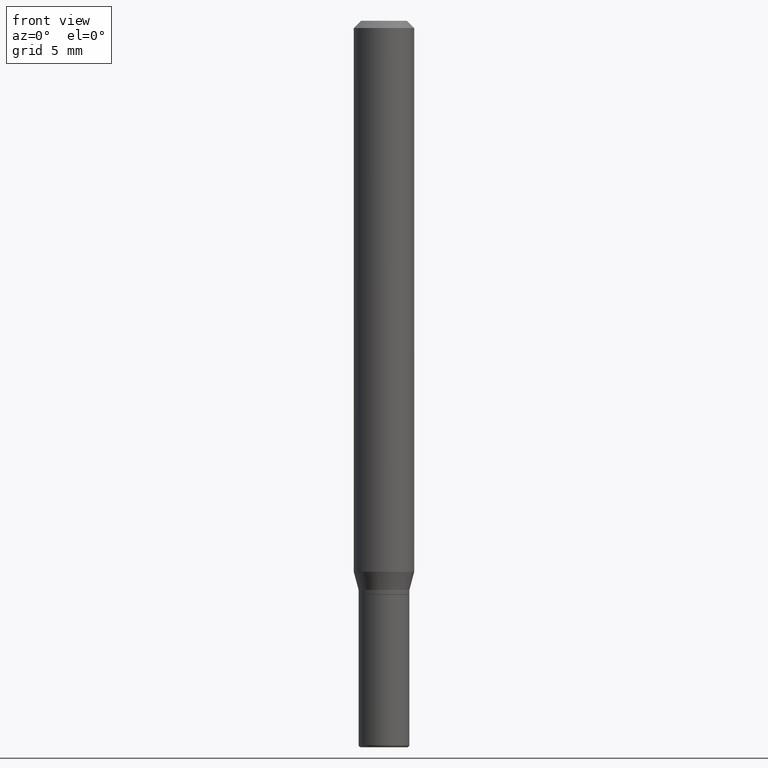
[diagram: clean part render]
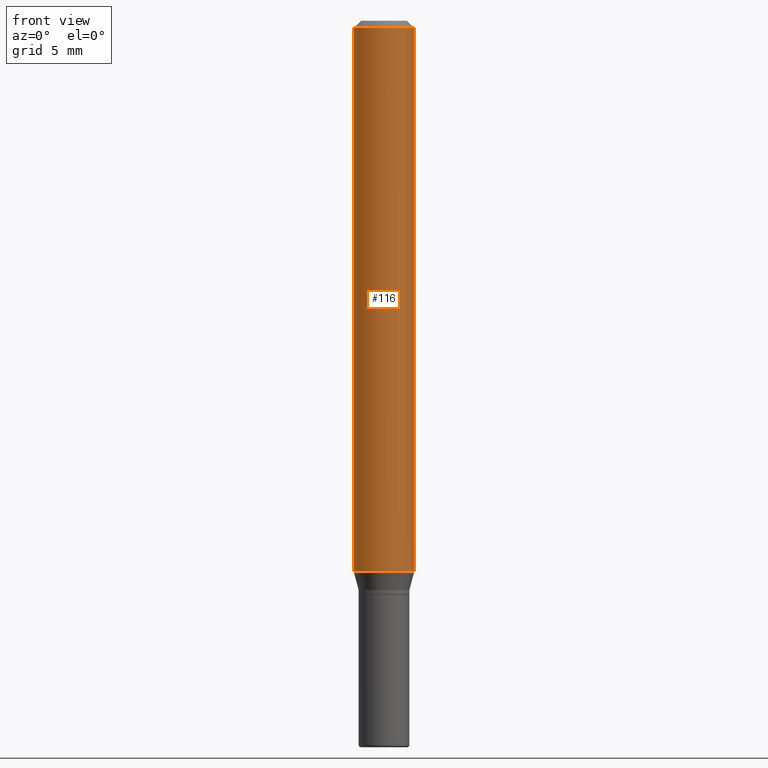
[diagram: same view with one face highlighted and labeled with its STEP entity id]
A machine part, front view. The second image highlights one B-rep face of the part: STEP entity #116.
In plain terms, the highlighted cylindrical surface (edge-blend (fillet) strip) has radius 1.5875 mm, axis along (-0, 0, 1).
Its self-contained STEP definition (entity closure, byte-faithful):
#1 = DIRECTION ( 'NONE',  ( -2.445468806185136877E-29, 3.491481338843145188E-15, 1.000000000000000000 ) ) ;
#2 = CIRCLE ( 'NONE', #320, 0.06250000000000000000 ) ;
#21 = CIRCLE ( 'NONE', #233, 0.06250000000000000000 ) ;
#24 = DIRECTION ( 'NONE',  ( -2.445468806185136597E-29, 3.491481338843145583E-15, 1.000000000000000000 ) ) ;
#77 = CARTESIAN_POINT ( 'NONE',  ( 3.668203209277632395E-31, -5.237222008264614861E-17, -0.01499999999999970281 ) ) ;
#78 = EDGE_LOOP ( 'NONE', ( #117, #335, #488, #260 ) ) ;
#85 = LINE ( 'NONE', #402, #183 ) ;
#114 = CARTESIAN_POINT ( 'NONE',  ( -0.06250000000000000000, -3.528097505788223835E-15, -1.137679491924311836 ) ) ;
#116 = ADVANCED_FACE ( 'NONE', ( #355 ), #476, .T. ) ;
#117 = ORIENTED_EDGE ( 'NONE', *, *, #481, .F. ) ;
#152 = CARTESIAN_POINT ( 'NONE',  ( -0.06250000000000000000, -1.568190258010403558E-15, -0.01499999999999970281 ) ) ;
#154 = EDGE_CURVE ( 'NONE', #339, #496, #21, .T. ) ;
#183 = VECTOR ( 'NONE', #249, 39.37007874015748143 ) ;
#198 = DIRECTION ( 'NONE',  ( 1.000000000000000000, -6.982962677686270655E-15, 0.000000000000000000 ) ) ;
#233 = AXIS2_PLACEMENT_3D ( 'NONE', #236, #322, #198 ) ;
#235 = DIRECTION ( 'NONE',  ( -2.445468806185136597E-29, 3.491481338843145583E-15, 1.000000000000000000 ) ) ;
#236 = CARTESIAN_POINT ( 'NONE',  ( 2.782159708937459794E-29, -3.972186715638285663E-15, -1.137679491924311836 ) ) ;
#249 = DIRECTION ( 'NONE',  ( -2.445468806185136877E-29, 3.491481338843145188E-15, 1.000000000000000000 ) ) ;
#256 = EDGE_CURVE ( 'NONE', #328, #265, #2, .T. ) ;
#260 = ORIENTED_EDGE ( 'NONE', *, *, #256, .F. ) ;
#265 = VERTEX_POINT ( 'NONE', #461 ) ;
#276 = CARTESIAN_POINT ( 'NONE',  ( 0.000000000000000000, 0.000000000000000000, 0.000000000000000000 ) ) ;
#286 = CARTESIAN_POINT ( 'NONE',  ( 0.06250000000000000000, -4.364351673553916694E-16, 3.047610484872459871E-30 ) ) ;
#290 = DIRECTION ( 'NONE',  ( 1.000000000000000000, -6.982962677686266711E-15, 4.876176775795935793E-29 ) ) ;
#305 = DIRECTION ( 'NONE',  ( 1.000000000000000000, -6.982962677686266711E-15, 0.000000000000000000 ) ) ;
#320 = AXIS2_PLACEMENT_3D ( 'NONE', #77, #24, #305 ) ;
#322 = DIRECTION ( 'NONE',  ( -2.445468806185136597E-29, 3.491481338843145583E-15, 1.000000000000000000 ) ) ;
#328 = VERTEX_POINT ( 'NONE', #152 ) ;
#335 = ORIENTED_EDGE ( 'NONE', *, *, #154, .T. ) ;
#339 = VERTEX_POINT ( 'NONE', #114 ) ;
#352 = AXIS2_PLACEMENT_3D ( 'NONE', #276, #235, #290 ) ;
#355 = FACE_OUTER_BOUND ( 'NONE', #78, .T. ) ;
#364 = LINE ( 'NONE', #286, #400 ) ;
#400 = VECTOR ( 'NONE', #1, 39.37007874015748143 ) ;
#402 = CARTESIAN_POINT ( 'NONE',  ( -0.06250000000000000000, 4.440892098500626162E-16, -3.074334431409316114E-30 ) ) ;
#461 = CARTESIAN_POINT ( 'NONE',  ( 0.06250000000000000000, -4.888073874380378612E-16, -0.01499999999999970281 ) ) ;
#471 = EDGE_CURVE ( 'NONE', #496, #265, #364, .T. ) ;
#476 = CYLINDRICAL_SURFACE ( 'NONE', #352, 0.06250000000000000000 ) ;
#481 = EDGE_CURVE ( 'NONE', #339, #328, #85, .T. ) ;
#488 = ORIENTED_EDGE ( 'NONE', *, *, #471, .T. ) ;
#495 = CARTESIAN_POINT ( 'NONE',  ( 0.06250000000000000000, -4.408621882993678121E-15, -1.137679491924311836 ) ) ;
#496 = VERTEX_POINT ( 'NONE', #495 ) ;